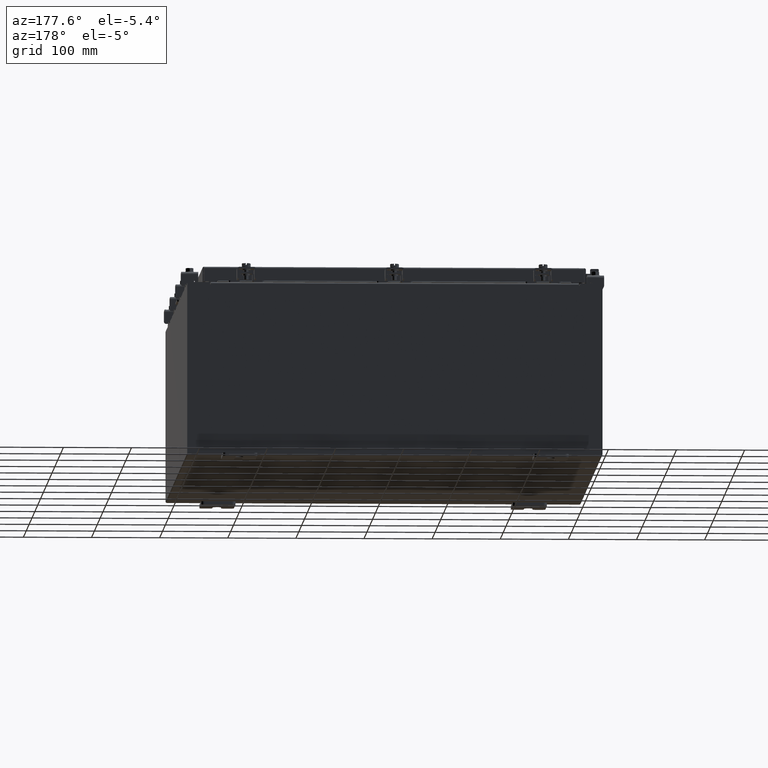
[diagram: clean part render]
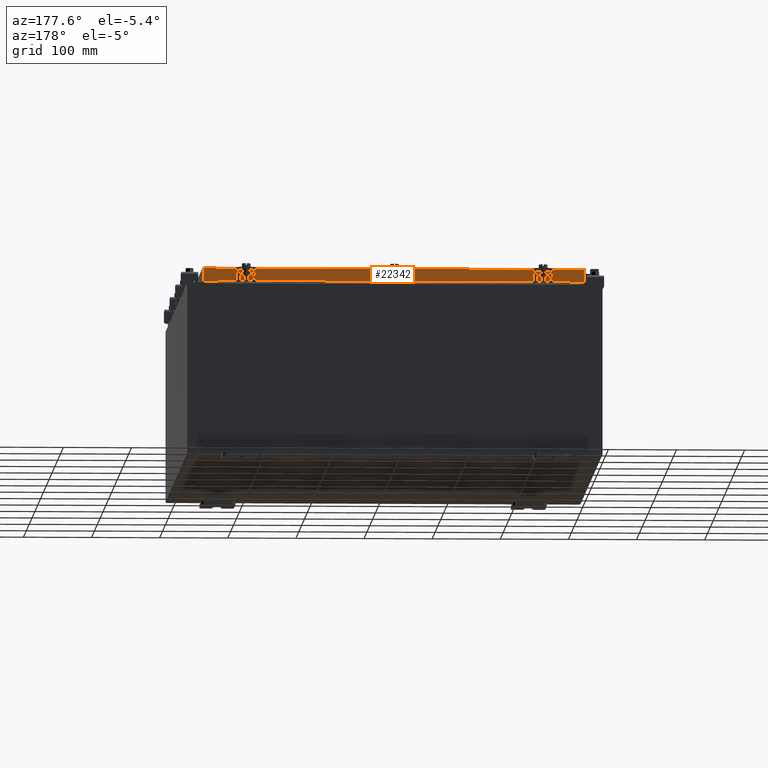
[diagram: same view with one face highlighted and labeled with its STEP entity id]
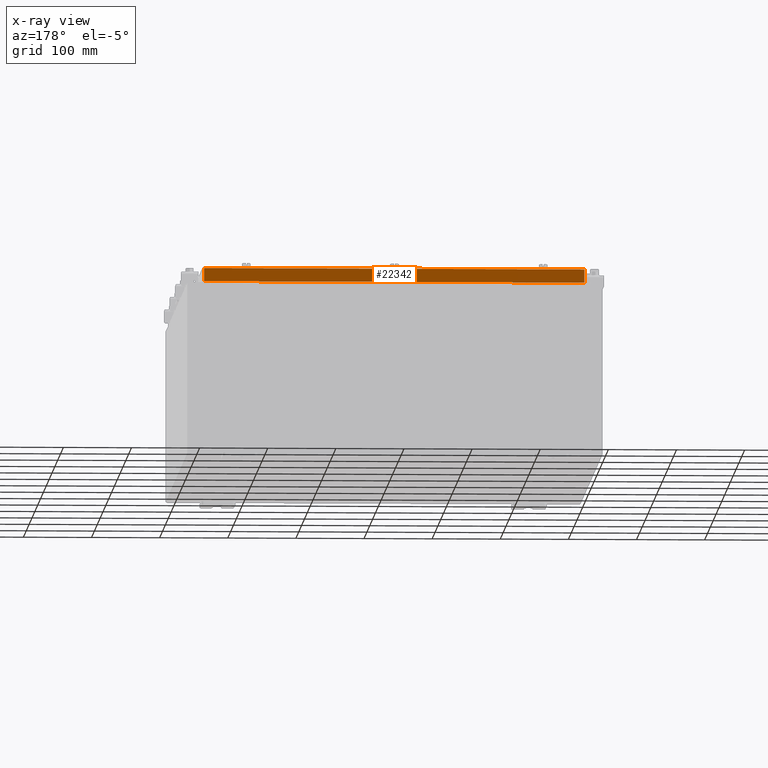
[diagram: x-ray of the same camera — body ghosted, the highlighted face saturated]
A machine part, auxiliary view. The second image highlights one B-rep face of the part: STEP entity #22342.
The next image is the same camera in x-ray: the body ghosted, the highlighted face saturated — about 0% of this face is hidden behind the body in this view.
In plain terms, the highlighted planar face has unit normal (0, -1, -0).
Its self-contained STEP definition (entity closure, byte-faithful):
#401 = VERTEX_POINT ( 'NONE', #1895 ) ;
#413 = DIRECTION ( 'NONE',  ( 0.0000000000000000000, 2.818880942772350300E-015, -1.000000000000000000 ) ) ;
#995 = DIRECTION ( 'NONE',  ( 1.000000000000000000, -4.379057701015054300E-047, 1.233005954894504400E-016 ) ) ;
#1455 = ORIENTED_EDGE ( 'NONE', *, *, #3669, .F. ) ;
#1895 = CARTESIAN_POINT ( 'NONE',  ( -10.98915786437626700, 14.09399999999999900, -0.08770000000000007000 ) ) ;
#1912 = ORIENTED_EDGE ( 'NONE', *, *, #4422, .F. ) ;
#2266 = VERTEX_POINT ( 'NONE', #18890 ) ;
#2468 = VECTOR ( 'NONE', #8860, 39.37007874015748100 ) ;
#2570 = VECTOR ( 'NONE', #995, 39.37007874015748100 ) ;
#2844 = CARTESIAN_POINT ( 'NONE',  ( -10.98915786437626900, 14.09399999999999900, -0.07469999999999978000 ) ) ;
#3066 = CARTESIAN_POINT ( 'NONE',  ( -10.98915786437626900, 14.09400000000000100, -0.8500000000000024200 ) ) ;
#3067 = LINE ( 'NONE', #10633, #2468 ) ;
#3669 = EDGE_CURVE ( 'NONE', #21000, #2266, #18045, .T. ) ;
#4152 = DIRECTION ( 'NONE',  ( 1.000000000000000000, -4.379057701015054300E-047, 1.233005954894504400E-016 ) ) ;
#4422 = EDGE_CURVE ( 'NONE', #401, #12381, #22425, .T. ) ;
#5350 = EDGE_CURVE ( 'NONE', #15427, #401, #10976, .T. ) ;
#5448 = LINE ( 'NONE', #9417, #18542 ) ;
#6069 = EDGE_CURVE ( 'NONE', #12381, #21000, #5448, .T. ) ;
#6436 = FACE_OUTER_BOUND ( 'NONE', #20993, .T. ) ;
#6801 = LINE ( 'NONE', #18868, #2570 ) ;
#7193 = CARTESIAN_POINT ( 'NONE',  ( -11.07799999999999900, 14.09399999999999900, -0.08770000000000007000 ) ) ;
#7615 = CARTESIAN_POINT ( 'NONE',  ( -4.898647335700341400E-030, 14.09399999999999900, 3.999012166344507700E-014 ) ) ;
#7681 = VECTOR ( 'NONE', #11749, 39.37007874015748100 ) ;
#7847 = DIRECTION ( 'NONE',  ( 1.000000000000000000, -0.0000000000000000000, -0.0000000000000000000 ) ) ;
#8442 = EDGE_CURVE ( 'NONE', #2266, #14867, #6801, .T. ) ;
#8559 = VECTOR ( 'NONE', #7847, 39.37007874015748100 ) ;
#8860 = DIRECTION ( 'NONE',  ( 0.0000000000000000000, 2.818880942772350300E-015, -1.000000000000000000 ) ) ;
#9417 = CARTESIAN_POINT ( 'NONE',  ( -11.07799999999999900, 14.09400000000000100, -0.8500000000000024200 ) ) ;
#9548 = CARTESIAN_POINT ( 'NONE',  ( 10.98915786437626700, 14.09399999999999900, -0.08770000000000007000 ) ) ;
#10045 = ORIENTED_EDGE ( 'NONE', *, *, #5350, .F. ) ;
#10258 = AXIS2_PLACEMENT_3D ( 'NONE', #7615, #11201, #413 ) ;
#10481 = ORIENTED_EDGE ( 'NONE', *, *, #11958, .T. ) ;
#10633 = CARTESIAN_POINT ( 'NONE',  ( 10.98915786437626900, 14.09399999999999900, 3.999012166344507700E-014 ) ) ;
#10843 = ORIENTED_EDGE ( 'NONE', *, *, #6069, .F. ) ;
#10976 = LINE ( 'NONE', #7193, #20458 ) ;
#11123 = PLANE ( 'NONE',  #10258 ) ;
#11201 = DIRECTION ( 'NONE',  ( 3.475696988576941300E-031, -1.000000000000000000, -2.818880942772350300E-015 ) ) ;
#11749 = DIRECTION ( 'NONE',  ( -0.0000000000000000000, 2.818880942772350300E-015, -1.000000000000000000 ) ) ;
#11958 = EDGE_CURVE ( 'NONE', #15427, #14867, #3067, .T. ) ;
#12381 = VERTEX_POINT ( 'NONE', #3066 ) ;
#14867 = VERTEX_POINT ( 'NONE', #18338 ) ;
#15427 = VERTEX_POINT ( 'NONE', #9548 ) ;
#17834 = CARTESIAN_POINT ( 'NONE',  ( -10.23915786437626700, 14.09399999999999900, -0.8500000000000033100 ) ) ;
#18045 = LINE ( 'NONE', #22175, #8559 ) ;
#18338 = CARTESIAN_POINT ( 'NONE',  ( 10.98915786437626700, 14.09400000000000100, -0.8499999999999996400 ) ) ;
#18542 = VECTOR ( 'NONE', #4152, 39.37007874015748100 ) ;
#18868 = CARTESIAN_POINT ( 'NONE',  ( -11.07799999999999900, 14.09400000000000100, -0.8500000000000024200 ) ) ;
#18890 = CARTESIAN_POINT ( 'NONE',  ( 10.23915786437626700, 14.09399999999999900, -0.8500000000000033100 ) ) ;
#19351 = ORIENTED_EDGE ( 'NONE', *, *, #8442, .F. ) ;
#19681 = DIRECTION ( 'NONE',  ( -1.000000000000000000, -3.475696988576942200E-031, -9.473942235605600700E-046 ) ) ;
#20458 = VECTOR ( 'NONE', #19681, 39.37007874015748100 ) ;
#20993 = EDGE_LOOP ( 'NONE', ( #10045, #10481, #19351, #1455, #10843, #1912 ) ) ;
#21000 = VERTEX_POINT ( 'NONE', #17834 ) ;
#22175 = CARTESIAN_POINT ( 'NONE',  ( -10.23915786437626700, 14.09399999999999900, -0.8500000000000033100 ) ) ;
#22342 = ADVANCED_FACE ( 'NONE', ( #6436 ), #11123, .F. ) ;
#22425 = LINE ( 'NONE', #2844, #7681 ) ;